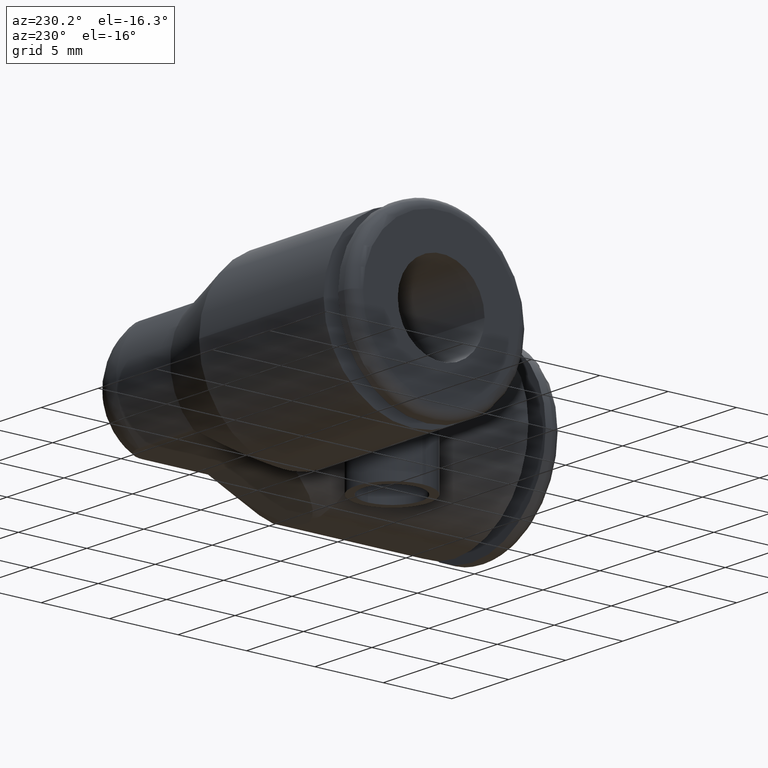
[diagram: clean part render]
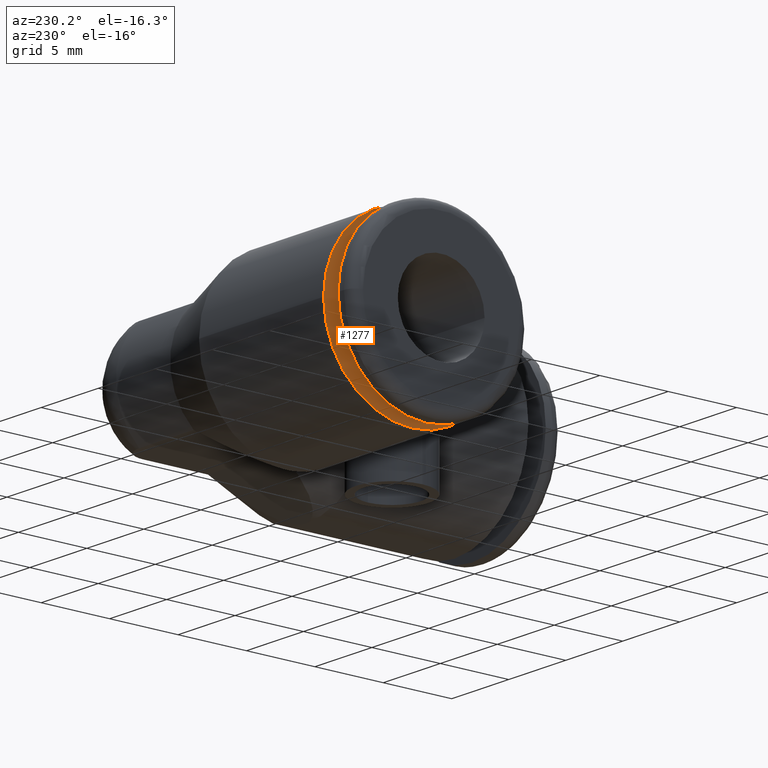
[diagram: same view with one face highlighted and labeled with its STEP entity id]
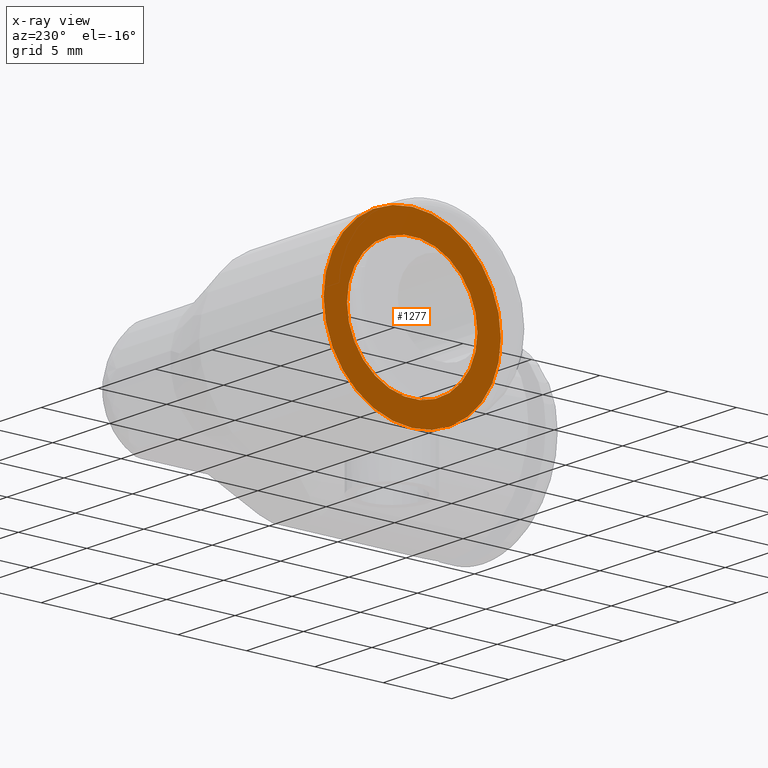
[diagram: x-ray of the same camera — body ghosted, the highlighted face saturated]
A machine part, auxiliary view. The second image highlights one B-rep face of the part: STEP entity #1277.
The next image is the same camera in x-ray: the body ghosted, the highlighted face saturated — about 0% of this face is hidden behind the body in this view.
In plain terms, the highlighted planar face has unit normal (1, 0, 0).
Its self-contained STEP definition (entity closure, byte-faithful):
#320=CARTESIAN_POINT('',(-7.3E-1,0.E0,0.E0));
#321=DIRECTION('',(1.E0,0.E0,0.E0));
#322=DIRECTION('',(0.E0,1.E0,0.E0));
#323=AXIS2_PLACEMENT_3D('',#320,#321,#322);
#333=CARTESIAN_POINT('',(-7.3E-1,0.E0,0.E0));
#334=DIRECTION('',(-1.E0,0.E0,0.E0));
#335=DIRECTION('',(0.E0,1.E0,0.E0));
#336=AXIS2_PLACEMENT_3D('',#333,#334,#335);
#338=CARTESIAN_POINT('',(-7.3E-1,0.E0,0.E0));
#339=DIRECTION('',(1.E0,0.E0,0.E0));
#340=DIRECTION('',(0.E0,1.E0,0.E0));
#341=AXIS2_PLACEMENT_3D('',#338,#339,#340);
#343=CARTESIAN_POINT('',(-7.3E-1,0.E0,0.E0));
#344=DIRECTION('',(-1.E0,0.E0,0.E0));
#345=DIRECTION('',(0.E0,1.E0,0.E0));
#346=AXIS2_PLACEMENT_3D('',#343,#344,#345);
#921=CARTESIAN_POINT('',(-7.3E-1,2.55E-1,0.E0));
#923=VERTEX_POINT('',#921);
#924=CARTESIAN_POINT('',(-7.3E-1,1.875E-1,0.E0));
#926=VERTEX_POINT('',#924);
#928=CARTESIAN_POINT('',(-7.3E-1,-1.875E-1,0.E0));
#930=VERTEX_POINT('',#928);
#932=CARTESIAN_POINT('',(-7.3E-1,-2.55E-1,0.E0));
#933=VERTEX_POINT('',#932);
#1262=CARTESIAN_POINT('',(-7.3E-1,0.E0,0.E0));
#1263=DIRECTION('',(1.E0,0.E0,0.E0));
#1264=DIRECTION('',(0.E0,-1.E0,0.E0));
#1265=AXIS2_PLACEMENT_3D('',#1262,#1263,#1264);
#1266=PLANE('',#1265);
#1268=ORIENTED_EDGE('',*,*,#1267,.T.);
#1270=ORIENTED_EDGE('',*,*,#1269,.F.);
#1271=EDGE_LOOP('',(#1268,#1270));
#1272=FACE_OUTER_BOUND('',#1271,.F.);
#1273=ORIENTED_EDGE('',*,*,#1257,.T.);
#1274=ORIENTED_EDGE('',*,*,#1241,.F.);
#1275=EDGE_LOOP('',(#1273,#1274));
#1276=FACE_BOUND('',#1275,.F.);
#1277=ADVANCED_FACE('',(#1272,#1276),#1266,.F.);
#324=CIRCLE('',#323,1.875E-1);
#337=CIRCLE('',#336,1.875E-1);
#342=CIRCLE('',#341,2.55E-1);
#347=CIRCLE('',#346,2.55E-1);
#1241=EDGE_CURVE('',#926,#930,#324,.T.);
#1257=EDGE_CURVE('',#926,#930,#337,.T.);
#1267=EDGE_CURVE('',#923,#933,#342,.T.);
#1269=EDGE_CURVE('',#923,#933,#347,.T.);